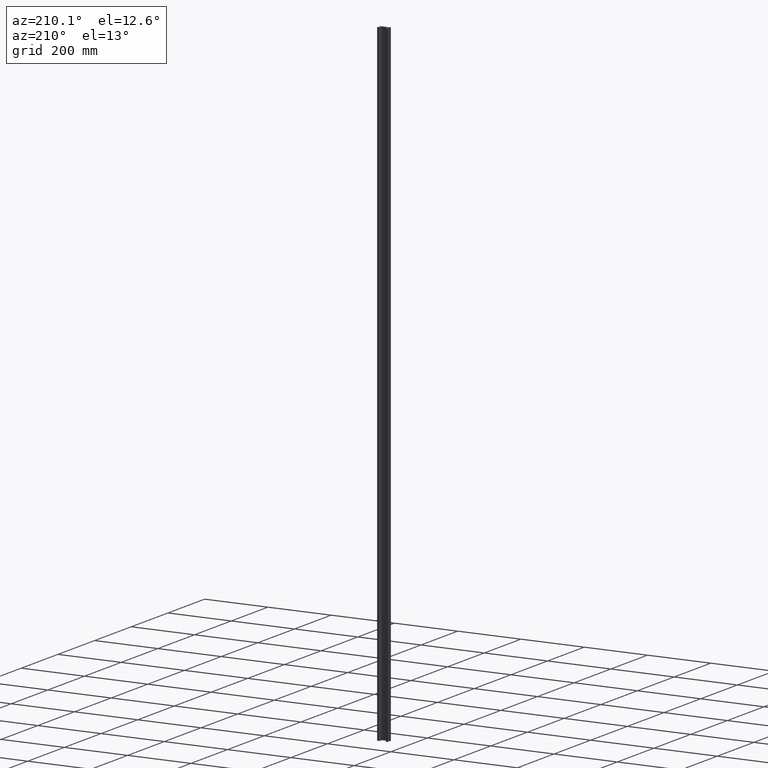
[diagram: clean part render]
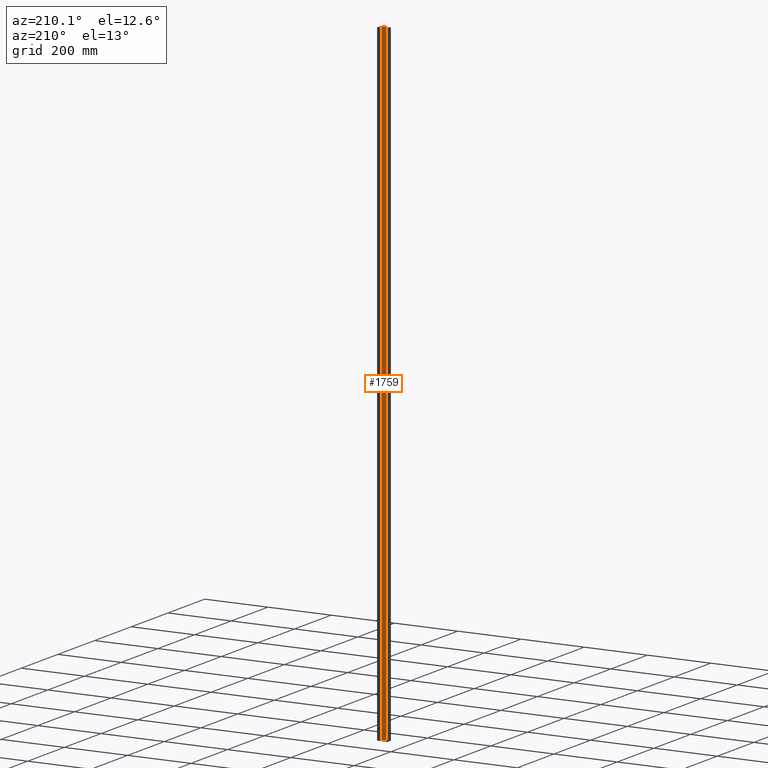
[diagram: same view with one face highlighted and labeled with its STEP entity id]
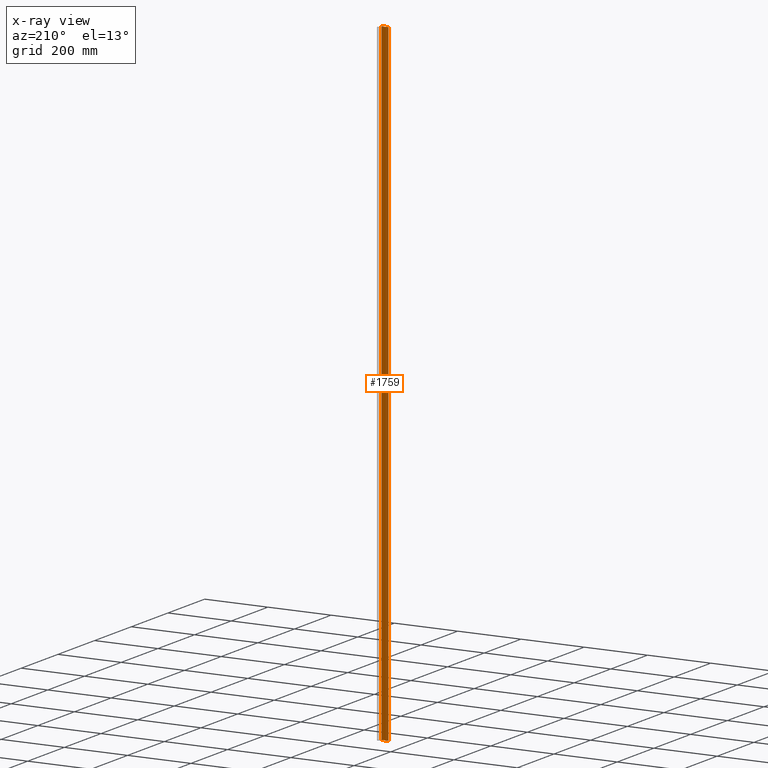
[diagram: x-ray of the same camera — body ghosted, the highlighted face saturated]
A machine part, auxiliary view. The second image highlights one B-rep face of the part: STEP entity #1759.
The next image is the same camera in x-ray: the body ghosted, the highlighted face saturated — about 0% of this face is hidden behind the body in this view.
In plain terms, the highlighted planar face has unit normal (0, -1, 0).
Its self-contained STEP definition (entity closure, byte-faithful):
#97 = AXIS2_PLACEMENT_3D ( 'NONE', #1496, #1486, #1511 ) ;
#115 = VECTOR ( 'NONE', #1024, 1000.000000000000000 ) ;
#204 = VECTOR ( 'NONE', #1255, 1000.000000000000000 ) ;
#238 = VECTOR ( 'NONE', #1257, 1000.000000000000000 ) ;
#251 = VECTOR ( 'NONE', #352, 1000.000000000000000 ) ;
#319 = CARTESIAN_POINT ( 'NONE',  ( 28.05000000000006100, 2.400000000000117200, 300.0000000000000000 ) ) ;
#325 = LINE ( 'NONE', #319, #251 ) ;
#352 = DIRECTION ( 'NONE',  ( -0.0000000000000000000, -0.0000000000000000000, -1.000000000000000000 ) ) ;
#482 = ORIENTED_EDGE ( 'NONE', *, *, #1636, .F. ) ;
#496 = ORIENTED_EDGE ( 'NONE', *, *, #1569, .F. ) ;
#497 = ORIENTED_EDGE ( 'NONE', *, *, #1673, .T. ) ;
#530 = ORIENTED_EDGE ( 'NONE', *, *, #1645, .T. ) ;
#757 = VERTEX_POINT ( 'NONE', #910 ) ;
#795 = VERTEX_POINT ( 'NONE', #963 ) ;
#800 = VERTEX_POINT ( 'NONE', #964 ) ;
#820 = VERTEX_POINT ( 'NONE', #946 ) ;
#846 = EDGE_LOOP ( 'NONE', ( #530, #482, #496, #497 ) ) ;
#910 = CARTESIAN_POINT ( 'NONE',  ( 28.05000000000006100, 2.400000000000117200, 0.0000000000000000000 ) ) ;
#946 = CARTESIAN_POINT ( 'NONE',  ( 6.349999999999890400, 2.400000000000117200, 2000.000000000000000 ) ) ;
#963 = CARTESIAN_POINT ( 'NONE',  ( 28.05000000000006100, 2.400000000000117200, 2000.000000000000000 ) ) ;
#964 = CARTESIAN_POINT ( 'NONE',  ( 6.349999999999890400, 2.400000000000117200, 0.0000000000000000000 ) ) ;
#989 = CARTESIAN_POINT ( 'NONE',  ( 0.03768049922007291700, 2.400000000000117200, 2000.000000000000000 ) ) ;
#1006 = LINE ( 'NONE', #989, #115 ) ;
#1024 = DIRECTION ( 'NONE',  ( -1.000000000000000000, 0.0000000000000000000, 0.0000000000000000000 ) ) ;
#1179 = CARTESIAN_POINT ( 'NONE',  ( 6.349999999999890400, 2.400000000000117200, 300.0000000000000000 ) ) ;
#1194 = LINE ( 'NONE', #1179, #204 ) ;
#1234 = LINE ( 'NONE', #1253, #238 ) ;
#1253 = CARTESIAN_POINT ( 'NONE',  ( 6.349999999999890400, 2.400000000000117200, 0.0000000000000000000 ) ) ;
#1255 = DIRECTION ( 'NONE',  ( -0.0000000000000000000, -0.0000000000000000000, -1.000000000000000000 ) ) ;
#1257 = DIRECTION ( 'NONE',  ( -1.000000000000000000, -0.0000000000000000000, -0.0000000000000000000 ) ) ;
#1476 = FACE_OUTER_BOUND ( 'NONE', #846, .T. ) ;
#1485 = PLANE ( 'NONE',  #97 ) ;
#1486 = DIRECTION ( 'NONE',  ( 0.0000000000000000000, -1.000000000000000000, 0.0000000000000000000 ) ) ;
#1496 = CARTESIAN_POINT ( 'NONE',  ( 6.349999999999890400, 2.400000000000117200, 300.0000000000000000 ) ) ;
#1511 = DIRECTION ( 'NONE',  ( 0.0000000000000000000, -0.0000000000000000000, -1.000000000000000000 ) ) ;
#1569 = EDGE_CURVE ( 'NONE', #795, #820, #1006, .T. ) ;
#1636 = EDGE_CURVE ( 'NONE', #820, #800, #1194, .T. ) ;
#1645 = EDGE_CURVE ( 'NONE', #757, #800, #1234, .T. ) ;
#1673 = EDGE_CURVE ( 'NONE', #795, #757, #325, .T. ) ;
#1759 = ADVANCED_FACE ( 'NONE', ( #1476 ), #1485, .F. ) ;